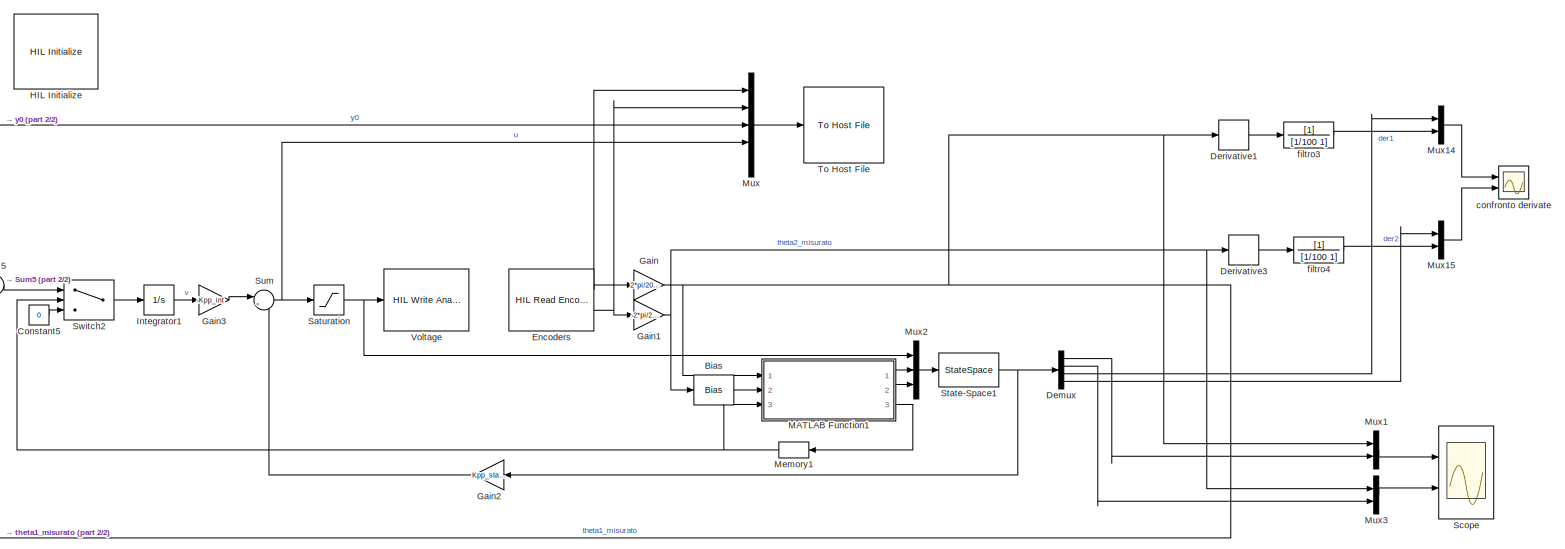
[diagram: root canvas - part 1/2, most of the canvas]
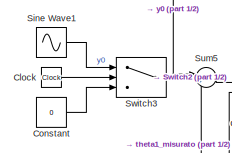
[diagram: root canvas - part 2/2, middle left region]
MODEL slx_b24b68b2db11
KIND model
CONFIG AbsTol = auto
CONFIG EnableMultiTasking = on
CONFIG FixedStep = 0.002
CONFIG MaxStep = auto
CONFIG MinStep = auto
CONFIG PostLoadFcn = qc_set_target_type(getConfigSet(bdroot, 'QUARC Default Target Configuration'));
CONFIG RelTol = 1e-3
CONFIG SampleTimeConstraint = Unconstrained
CONFIG Solver = ode1
CONFIG SolverName = ode1
CONFIG StartTime = 0.0
CONFIG StopTime = inf
BLOCK [Bias] Bias
  Bias = -pi
  SaturateOnIntegerOverflow = off
BLOCK [Clock] Clock
BLOCK [Constant] Constant
  Value = 0
BLOCK [Constant] Constant5
  Value = 0
BLOCK [Demux] Demux
  DisplayOption = bar
  Ports = [1, 4]
BLOCK [Derivative] Derivative1
BLOCK [Derivative] Derivative3
BLOCK [Reference] Encoders  REF=quarc_library/Data Acquisition/Generic/Timebases/HIL Read Encoder
Timebase
  AttributesFormatString = (%<object_name>)
  Ports = [0, 2]
  SourceBlock = quarc_library/Data Acquisition/Generic/Timebases/HIL Read Encoder\nTimebase
  SourceProductName = QUARC Targets
  SourceType = HIL Read Encoder Timebase
  UserDataPersistent = on
BLOCK [Gain] Gain
  Gain = 2*pi/2048
  OutDataTypeStr = Inherit: Inherit via internal rule
  ParamDataTypeStr = Inherit: Inherit via internal rule
  SaturateOnIntegerOverflow = off
BLOCK [Gain] Gain1
  Gain = -2*pi/2048
  OutDataTypeStr = Inherit: Inherit via internal rule
  ParamDataTypeStr = Inherit: Inherit via internal rule
  SaturateOnIntegerOverflow = off
BLOCK [Gain] Gain2
  Gain = Kpp_state
  Multiplication = Matrix(K*u)
  OutDataTypeStr = Inherit: Inherit via internal rule
  ParamDataTypeStr = Inherit: Inherit via internal rule
  SaturateOnIntegerOverflow = off
BLOCK [Gain] Gain3
  Gain = -Kpp_int
  Multiplication = Matrix(K*u)
  OutDataTypeStr = Inherit: Inherit via internal rule
  ParamDataTypeStr = Inherit: Inherit via internal rule
  SaturateOnIntegerOverflow = off
BLOCK [Reference] HIL Initialize  REF=quarc_library/Data Acquisition/Generic/Configuration/HIL Initialize
  AttributesFormatString = %<object_name> (%<board_type>-%<board_number>)
  Ports = []
  Priority = -99
  SourceBlock = quarc_library/Data Acquisition/Generic/Configuration/HIL Initialize
  SourceProductName = QUARC Targets
  SourceType = HIL Initialize
  UserDataPersistent = on
BLOCK [Integrator] Integrator1
  Ports = [1, 1]
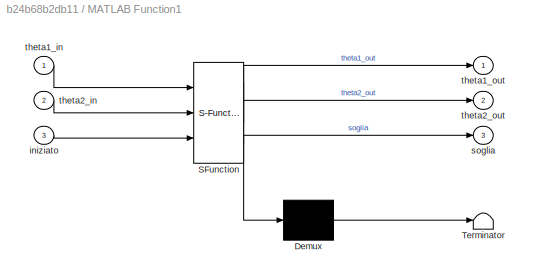
BLOCK [SubSystem] MATLAB Function1
  ErrorFcn = Stateflow.Translate.translate
  PermitHierarchicalResolution = ExplicitOnly
  Ports = [3, 3]
  RequestExecContextInheritance = off
  SFBlockType = MATLAB Function
  TreatAsAtomicUnit = on
BLOCK [Demux] MATLAB Function1/ Demux 
  Outputs = 1
  Ports = [1, 1]
BLOCK [S-Function] MATLAB Function1/ SFunction 
  EnableBusSupport = on
  FunctionName = sf_sfun
  PortCounts = [3 4]
  Ports = [3, 4]
  SFcnIsStateOwnerBlock = off
  SFunctionDeploymentMode = off
  Tag = Stateflow S-Function 1
BLOCK [Terminator] MATLAB Function1/ Terminator 
BLOCK [Inport] MATLAB Function1/iniziato
  IconDisplay = Port number
  Port = 3
BLOCK [Outport] MATLAB Function1/soglia
  IconDisplay = Port number
  Port = 3
BLOCK [Inport] MATLAB Function1/theta1_in
  IconDisplay = Port number
BLOCK [Outport] MATLAB Function1/theta1_out
  IconDisplay = Port number
BLOCK [Inport] MATLAB Function1/theta2_in
  IconDisplay = Port number
  Port = 2
BLOCK [Outport] MATLAB Function1/theta2_out
  IconDisplay = Port number
  Port = 2
BLOCK [Memory] Memory1
BLOCK [Mux] Mux
  DisplayOption = bar
  Inputs = 5
  Ports = [5, 1]
BLOCK [Mux] Mux1
  DisplayOption = bar
  Inputs = 2
  Ports = [2, 1]
BLOCK [Mux] Mux14
  DisplayOption = bar
  Inputs = 2
  Ports = [2, 1]
BLOCK [Mux] Mux15
  DisplayOption = bar
  Inputs = 2
  Ports = [2, 1]
BLOCK [Mux] Mux2
  DisplayOption = bar
  Inputs = 3
  Ports = [3, 1]
BLOCK [Mux] Mux3
  DisplayOption = bar
  Inputs = 2
  Ports = [2, 1]
BLOCK [Saturate] Saturation
  InputPortMap = u0
  LowerLimit = -10
  Ports = [1, 1]
  UpperLimit = 10
BLOCK [Scope] Scope
  Floating = off
  NumInputPorts = 2
  Ports = [2]
  ScopeSpecificationString = Simulink.scopes.TimeScopeBlockCfg('CurrentConfiguration', extmgr.ConfigurationSet(extmgr.Configuration('Core','General UI',true),extmgr.Configuration('Core','Source UI',true),extmgr.Configuration('Sources','WiredSimulink',true,'DataLoggingVariableName','ScopeData1'),extmgr.Configuration('Visuals','Time Domain',true),extmgr.Configuration('Tools','Plot Navigation',true),extmgr.Configuration('Tools',...<+40ch>
BLOCK [Sin] Sine Wave1
  Amplitude = 0.8
  Frequency = 0.1
  Ports = [0, 1]
  SampleTime = 0
BLOCK [StateSpace] State-Space1
  A = Ao
  B = Bo
  C = eye(4)
  D = zeros(4,3)
  InitialCondition = 0
  Ports = [1, 1]
BLOCK [Sum] Sum
  IconShape = round
  InputSameDT = off
  Inputs = |+-
  OutDataTypeStr = Inherit: Inherit via internal rule
  Ports = [2, 1]
  SaturateOnIntegerOverflow = off
BLOCK [Sum] Sum5
  IconShape = round
  InputSameDT = off
  Inputs = |+-
  OutDataTypeStr = Inherit: Inherit via internal rule
  Ports = [2, 1]
  SaturateOnIntegerOverflow = off
BLOCK [Switch] Switch2
  Criteria = u2 > Threshold
  InputSameDT = off
  SaturateOnIntegerOverflow = off
  Threshold = 1
BLOCK [Switch] Switch3
  Criteria = u2 > Threshold
  InputSameDT = off
  SaturateOnIntegerOverflow = off
  Threshold = 4*pi
BLOCK [Reference] To Host File  REF=quarc_library/Sinks/To Host/To Host File
  AttributesFormatString = %<final_file_name>
  Ports = [1]
  SourceBlock = quarc_library/Sinks/To Host/To Host File
  SourceProductName = QUARC Targets
  SourceType = To Host File
BLOCK [Reference] Voltage  REF=quarc_library/Data Acquisition/Generic/Immediate I//O/HIL Write Analog
  AttributesFormatString = (%<object_name>)
  Ports = [1]
  SourceBlock = quarc_library/Data Acquisition/Generic/Immediate I//O/HIL Write Analog
  SourceProductName = QUARC Targets
  SourceType = HIL Write Analog
  UserDataPersistent = on
BLOCK [Scope] confronto derivate 
  Floating = off
  NumInputPorts = 2
  Ports = [2]
  ScopeSpecificationString = Simulink.scopes.TimeScopeBlockCfg('CurrentConfiguration', extmgr.ConfigurationSet(extmgr.Configuration('Core','General UI',true),extmgr.Configuration('Core','Source UI',true),extmgr.Configuration('Sources','WiredSimulink',true),extmgr.Configuration('Visuals','Time Domain',true,'SerializedDisplays',{struct('MinYLimReal','-6.39758','MaxYLimReal','2.37423','YLabelReal','','MinYLimMag','0.00000','MaxY...<+2157ch>
BLOCK [TransferFcn] filtro3
  Denominator = [1/100 1]
BLOCK [TransferFcn] filtro4
  Denominator = [1/100 1]
LINE Bias:1 -> MATLAB Function1:2
LINE Clock:1 -> Switch3:2
LINE Constant5:1 -> Switch2:3
LINE Constant:1 -> Switch3:3
LINE Demux:1 -> Mux1:2
LINE Demux:2 -> Mux3:2
LINE Demux:3 -> Mux14:1
LINE Demux:4 -> Mux15:1
LINE Derivative1:1 -> filtro3:1
LINE Derivative3:1 -> filtro4:1
NET Encoders:1 -> Gain:1, Mux:1
NET Encoders:2 -> Gain1:1, Mux:2
NET Gain1:1 -> Bias:1, Derivative3:1, Mux3:1
LINE Gain2:1 -> Sum:2
LINE Gain3:1 -> Sum:1
NET Gain:1 -> Derivative1:1, MATLAB Function1:1, Mux1:1, Sum5:2
LINE Integrator1:1 -> Gain3:1
LINE MATLAB Function1:1 -> Mux2:2
LINE MATLAB Function1:2 -> Mux2:3
LINE MATLAB Function1:3 -> Memory1:1
NET Memory1:1 -> MATLAB Function1:3, Switch2:2
LINE Mux14:1 -> confronto derivate :1
LINE Mux15:1 -> confronto derivate :2
LINE Mux1:1 -> Scope:1
LINE Mux2:1 -> State-Space1:1
LINE Mux3:1 -> Scope:2
LINE Mux:1 -> To Host File:1
NET Saturation:1 -> Mux2:1, Voltage:1
LINE Sine Wave1:1 -> Switch3:1
NET State-Space1:1 -> Demux:1, Gain2:1
LINE Sum5:1 -> Switch2:1
NET Sum:1 -> Mux:4, Saturation:1
LINE Switch2:1 -> Integrator1:1
NET Switch3:1 -> Mux:3, Sum5:1
LINE filtro3:1 -> Mux14:2
LINE filtro4:1 -> Mux15:2
note: NET lines group one-source signal fan-out (src -> all destinations, sorted); 1:1 wires keep LINE
CHART MATLAB Function1 states=1 transitions=1
  STATE_LABEL 'eML_blk_kernel()'
  STATE_LABEL 'SCRIPT:\nfunction [theta1_out, theta2_out, soglia] = fcn(theta1_in, theta2_in, iniziato)\nif theta2_in >= 0.01\n    theta1_out = theta1_in;\n    theta2_out = theta2_in;\n    soglia = 2; \nelseif iniziato >1\n    theta1_out = theta1_in;\n    theta2_out = theta2_in;\n    soglia = 2;\nelse\n    soglia = 0;\n    theta1_out = 0;\n    theta2_out = 0;\nend\nend\n\n\n'
